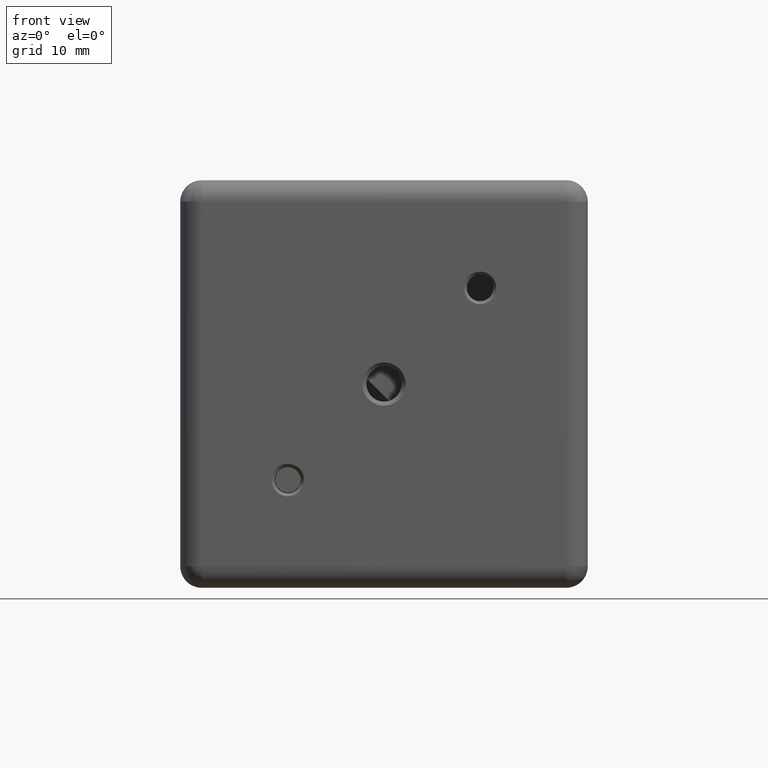
[diagram: clean part render]
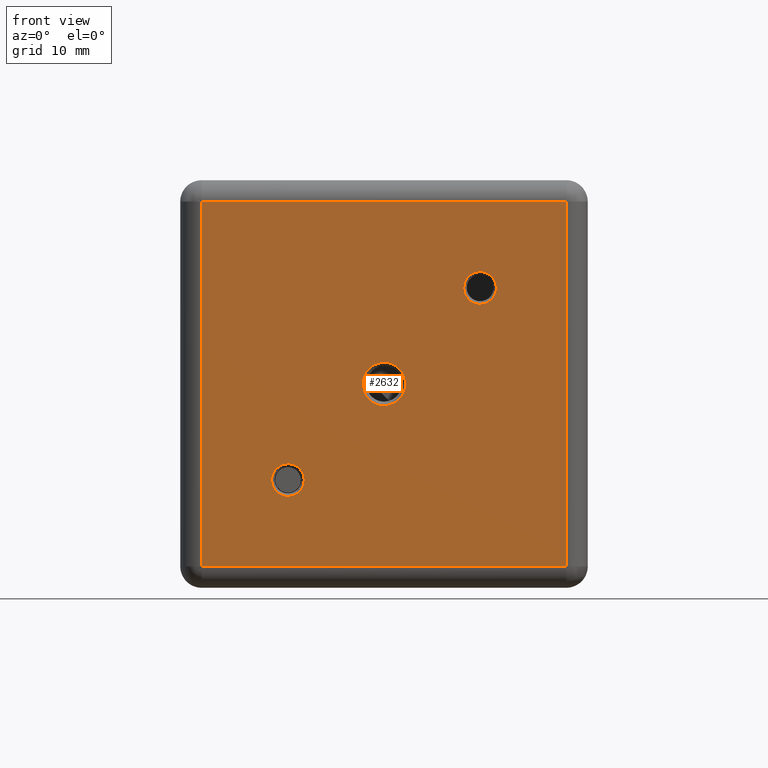
[diagram: same view with one face highlighted and labeled with its STEP entity id]
A machine part, front view. The second image highlights one B-rep face of the part: STEP entity #2632.
In plain terms, the highlighted face is a freeform B-spline surface patch.
Its self-contained STEP definition (entity closure, byte-faithful):
#292 = VERTEX_POINT ( 'NONE', #10666 ) ;
#312 = CARTESIAN_POINT ( 'NONE',  ( -17.05000000000000071, -2.000000000000000000, 17.05000000000000071 ) ) ;
#402 = CARTESIAN_POINT ( 'NONE',  ( 17.05000000000000071, -2.000000000000000000, -17.05000000000000071 ) ) ;
#841 = ORIENTED_EDGE ( 'NONE', *, *, #1658, .F. ) ;
#1124 = CARTESIAN_POINT ( 'NONE',  ( 17.05000000000000071, -2.000000000000000000, -17.05000000000000071 ) ) ;
#1332 = CARTESIAN_POINT ( 'NONE',  ( 8.980256121069210451, -2.000000000000000000, 7.455256121069099962 ) ) ;
#1410 = CARTESIAN_POINT ( 'NONE',  ( -8.980256121069199793, -2.000000000000000000, -7.455256121069109732 ) ) ;
#1658 = EDGE_CURVE ( 'NONE', #5721, #292, #11884, .T. ) ;
#1761 =( BOUNDED_CURVE ( )  B_SPLINE_CURVE ( 3, ( #15290, #11478, #4233, #4386 ),
 .UNSPECIFIED., .F., .T. ) 
 B_SPLINE_CURVE_WITH_KNOTS ( ( 4, 4 ),
 ( 0.000000000000000000, 1.000000000000000000 ),
 .UNSPECIFIED. ) 
 CURVE ( )  GEOMETRIC_REPRESENTATION_ITEM ( )  RATIONAL_B_SPLINE_CURVE ( ( 1.000000000000000000, 0.3333333333333329818, 0.3333333333333329818, 1.000000000000000000 ) ) 
 REPRESENTATION_ITEM ( '' )  );
#1893 = EDGE_CURVE ( 'NONE', #8432, #2973, #3981, .T. ) ;
#1901 = VERTEX_POINT ( 'NONE', #9048 ) ;
#1904 = FACE_BOUND ( 'NONE', #10762, .T. ) ;
#1919 = ORIENTED_EDGE ( 'NONE', *, *, #6158, .F. ) ;
#2125 =( BOUNDED_CURVE ( )  B_SPLINE_CURVE ( 3, ( #3529, #12145, #6082, #13185 ),
 .UNSPECIFIED., .F., .T. ) 
 B_SPLINE_CURVE_WITH_KNOTS ( ( 4, 4 ),
 ( 0.000000000000000000, 1.000000000000000000 ),
 .UNSPECIFIED. ) 
 CURVE ( )  GEOMETRIC_REPRESENTATION_ITEM ( )  RATIONAL_B_SPLINE_CURVE ( ( 1.000000000000000000, 0.3333333333333329818, 0.3333333333333329818, 1.000000000000000000 ) ) 
 REPRESENTATION_ITEM ( '' )  );
#2260 = CARTESIAN_POINT ( 'NONE',  ( -17.05000000000000071, -2.000000000000000000, -17.05000000000000071 ) ) ;
#2326 = EDGE_CURVE ( 'NONE', #9627, #14566, #14978, .T. ) ;
#2632 = ADVANCED_FACE ( 'NONE', ( #9139, #1904, #5163, #10025 ), #14568, .T. ) ;
#2973 = VERTEX_POINT ( 'NONE', #2260 ) ;
#3482 = ORIENTED_EDGE ( 'NONE', *, *, #5699, .F. ) ;
#3529 = CARTESIAN_POINT ( 'NONE',  ( 1.653273178848924895E-16, -2.000000000000000000, 2.024999999999999911 ) ) ;
#3844 = B_SPLINE_CURVE_WITH_KNOTS ( 'NONE', 1,
 ( #11754, #9520 ),
 .UNSPECIFIED., .F., .F.,
 ( 2, 2 ),
 ( 0.000000000000000000, 1.000000000000000000 ),
 .UNSPECIFIED. ) ;
#3847 = CARTESIAN_POINT ( 'NONE',  ( -17.05000000000000071, -2.000000000000000000, 17.05000000000000071 ) ) ;
#3940 = CARTESIAN_POINT ( 'NONE',  ( 12.03025612106919695, -2.000000000000001776, 10.50525612106910245 ) ) ;
#3981 = B_SPLINE_CURVE_WITH_KNOTS ( 'NONE', 1,
 ( #7690, #4112 ),
 .UNSPECIFIED., .F., .F.,
 ( 2, 2 ),
 ( 0.000000000000000000, 1.000000000000000000 ),
 .UNSPECIFIED. ) ;
#3991 = CARTESIAN_POINT ( 'NONE',  ( -8.980256121069199793, -2.000000000000000000, -7.455256121069109732 ) ) ;
#4112 = CARTESIAN_POINT ( 'NONE',  ( -17.05000000000000071, -2.000000000000000000, -17.05000000000000071 ) ) ;
#4233 = CARTESIAN_POINT ( 'NONE',  ( 5.930256121069216846, -2.000000000000000888, 7.455256121069111508 ) ) ;
#4386 = CARTESIAN_POINT ( 'NONE',  ( 8.980256121069210451, -2.000000000000000000, 7.455256121069099962 ) ) ;
#4442 = CARTESIAN_POINT ( 'NONE',  ( -1.653273178848930071E-16, -2.000000000000000000, -2.024999999999999911 ) ) ;
#4616 =( BOUNDED_CURVE ( )  B_SPLINE_CURVE ( 3, ( #1410, #8805, #12152, #12470 ),
 .UNSPECIFIED., .F., .T. ) 
 B_SPLINE_CURVE_WITH_KNOTS ( ( 4, 4 ),
 ( 0.000000000000000000, 1.000000000000000000 ),
 .UNSPECIFIED. ) 
 CURVE ( )  GEOMETRIC_REPRESENTATION_ITEM ( )  RATIONAL_B_SPLINE_CURVE ( ( 1.000000000000000000, 0.3333333333333330373, 0.3333333333333330373, 1.000000000000000000 ) ) 
 REPRESENTATION_ITEM ( '' )  );
#4812 = VERTEX_POINT ( 'NONE', #6494 ) ;
#5018 = CARTESIAN_POINT ( 'NONE',  ( -8.980256121069199793, -2.000000000000000000, -7.455256121069109732 ) ) ;
#5163 = FACE_BOUND ( 'NONE', #11220, .T. ) ;
#5182 = CARTESIAN_POINT ( 'NONE',  ( -5.930256121069207964, -2.000000000000004885, -10.50525612106910422 ) ) ;
#5251 = ORIENTED_EDGE ( 'NONE', *, *, #2326, .F. ) ;
#5570 = EDGE_LOOP ( 'NONE', ( #3482, #841 ) ) ;
#5699 = EDGE_CURVE ( 'NONE', #292, #5721, #2125, .T. ) ;
#5721 = VERTEX_POINT ( 'NONE', #15724 ) ;
#6040 = CARTESIAN_POINT ( 'NONE',  ( 17.05000000000000071, -2.000000000000000000, 17.05000000000000071 ) ) ;
#6082 = CARTESIAN_POINT ( 'NONE',  ( -4.050000000000004263, -1.999999999999999556, -2.025000000000002132 ) ) ;
#6158 = EDGE_CURVE ( 'NONE', #1901, #11968, #7508, .T. ) ;
#6218 = B_SPLINE_CURVE_WITH_KNOTS ( 'NONE', 1,
 ( #6040, #1124 ),
 .UNSPECIFIED., .F., .F.,
 ( 2, 2 ),
 ( 0.000000000000000000, 1.000000000000000000 ),
 .UNSPECIFIED. ) ;
#6494 = CARTESIAN_POINT ( 'NONE',  ( 8.980256121069210451, -2.000000000000000000, 7.455256121069099962 ) ) ;
#6527 = ORIENTED_EDGE ( 'NONE', *, *, #10127, .F. ) ;
#7060 = CARTESIAN_POINT ( 'NONE',  ( 4.050000000000004263, -1.999999999999999556, -2.025000000000002132 ) ) ;
#7447 = CARTESIAN_POINT ( 'NONE',  ( 8.980256121069210451, -2.000000000000000000, 10.50525612106910067 ) ) ;
#7508 =( BOUNDED_CURVE ( )  B_SPLINE_CURVE ( 3, ( #10046, #5182, #8773, #3991 ),
 .UNSPECIFIED., .F., .T. ) 
 B_SPLINE_CURVE_WITH_KNOTS ( ( 4, 4 ),
 ( 0.000000000000000000, 1.000000000000000000 ),
 .UNSPECIFIED. ) 
 CURVE ( )  GEOMETRIC_REPRESENTATION_ITEM ( )  RATIONAL_B_SPLINE_CURVE ( ( 1.000000000000000000, 0.3333333333333329818, 0.3333333333333329818, 1.000000000000000000 ) ) 
 REPRESENTATION_ITEM ( '' )  );
#7626 = CARTESIAN_POINT ( 'NONE',  ( -17.05000000000000071, -2.000000000000000000, 17.05000000000000071 ) ) ;
#7690 = CARTESIAN_POINT ( 'NONE',  ( 17.05000000000000071, -2.000000000000000000, -17.05000000000000071 ) ) ;
#8163 = ORIENTED_EDGE ( 'NONE', *, *, #1893, .F. ) ;
#8432 = VERTEX_POINT ( 'NONE', #8787 ) ;
#8647 = CARTESIAN_POINT ( 'NONE',  ( 12.03025612106919695, -2.000000000000001776, 7.455256121069099073 ) ) ;
#8704 = CARTESIAN_POINT ( 'NONE',  ( 17.05000000000000071, -2.000000000000000000, 17.05000000000000071 ) ) ;
#8773 = CARTESIAN_POINT ( 'NONE',  ( -5.930256121069207964, -2.000000000000004885, -7.455256121069108843 ) ) ;
#8787 = CARTESIAN_POINT ( 'NONE',  ( 17.05000000000000071, -2.000000000000000000, -17.05000000000000071 ) ) ;
#8805 = CARTESIAN_POINT ( 'NONE',  ( -12.03025612106918985, -1.999999999999998224, -7.455256121069114172 ) ) ;
#8834 = CARTESIAN_POINT ( 'NONE',  ( 17.05000000000000071, -2.000000000000000000, 17.05000000000000071 ) ) ;
#9021 = CARTESIAN_POINT ( 'NONE',  ( 8.980256121069210451, -2.000000000000000000, 10.50525612106910067 ) ) ;
#9048 = CARTESIAN_POINT ( 'NONE',  ( -8.980256121069199793, -2.000000000000000000, -10.50525612106910067 ) ) ;
#9093 = EDGE_CURVE ( 'NONE', #13686, #4812, #1761, .T. ) ;
#9139 = FACE_BOUND ( 'NONE', #5570, .T. ) ;
#9449 = ORIENTED_EDGE ( 'NONE', *, *, #10378, .F. ) ;
#9520 = CARTESIAN_POINT ( 'NONE',  ( -17.05000000000000071, -2.000000000000000000, 17.05000000000000071 ) ) ;
#9627 = VERTEX_POINT ( 'NONE', #312 ) ;
#9953 = EDGE_LOOP ( 'NONE', ( #8163, #11566, #5251, #6527 ) ) ;
#10025 = FACE_OUTER_BOUND ( 'NONE', #9953, .T. ) ;
#10046 = CARTESIAN_POINT ( 'NONE',  ( -8.980256121069199793, -2.000000000000000000, -10.50525612106910067 ) ) ;
#10127 = EDGE_CURVE ( 'NONE', #2973, #9627, #3844, .T. ) ;
#10359 = EDGE_CURVE ( 'NONE', #4812, #13686, #14865, .T. ) ;
#10378 = EDGE_CURVE ( 'NONE', #11968, #1901, #4616, .T. ) ;
#10666 = CARTESIAN_POINT ( 'NONE',  ( 1.653273178848924895E-16, -2.000000000000000000, 2.024999999999999911 ) ) ;
#10762 = EDGE_LOOP ( 'NONE', ( #11817, #13326 ) ) ;
#11220 = EDGE_LOOP ( 'NONE', ( #1919, #9449 ) ) ;
#11478 = CARTESIAN_POINT ( 'NONE',  ( 5.930256121069216846, -2.000000000000000888, 10.50525612106909890 ) ) ;
#11566 = ORIENTED_EDGE ( 'NONE', *, *, #12469, .F. ) ;
#11754 = CARTESIAN_POINT ( 'NONE',  ( -17.05000000000000071, -2.000000000000000000, -17.05000000000000071 ) ) ;
#11817 = ORIENTED_EDGE ( 'NONE', *, *, #10359, .F. ) ;
#11884 =( BOUNDED_CURVE ( )  B_SPLINE_CURVE ( 3, ( #4442, #7060, #12977, #13124 ),
 .UNSPECIFIED., .F., .F. ) 
 B_SPLINE_CURVE_WITH_KNOTS ( ( 4, 4 ),
 ( 0.000000000000000000, 1.000000000000000000 ),
 .UNSPECIFIED. ) 
 CURVE ( )  GEOMETRIC_REPRESENTATION_ITEM ( )  RATIONAL_B_SPLINE_CURVE ( ( 1.000000000000000000, 0.3333333333333329818, 0.3333333333333329818, 1.000000000000000000 ) ) 
 REPRESENTATION_ITEM ( '' )  );
#11968 = VERTEX_POINT ( 'NONE', #5018 ) ;
#12145 = CARTESIAN_POINT ( 'NONE',  ( -4.050000000000004263, -1.999999999999999556, 2.025000000000002132 ) ) ;
#12152 = CARTESIAN_POINT ( 'NONE',  ( -12.03025612106918985, -1.999999999999998224, -10.50525612106909712 ) ) ;
#12469 = EDGE_CURVE ( 'NONE', #14566, #8432, #6218, .T. ) ;
#12470 = CARTESIAN_POINT ( 'NONE',  ( -8.980256121069199793, -2.000000000000000000, -10.50525612106910067 ) ) ;
#12498 = CARTESIAN_POINT ( 'NONE',  ( -17.05000000000000071, -2.000000000000000000, -17.05000000000000071 ) ) ;
#12704 = CARTESIAN_POINT ( 'NONE',  ( 17.05000000000000071, -2.000000000000000000, 17.05000000000000071 ) ) ;
#12977 = CARTESIAN_POINT ( 'NONE',  ( 4.050000000000004263, -1.999999999999999556, 2.025000000000002132 ) ) ;
#13124 = CARTESIAN_POINT ( 'NONE',  ( 1.653273178848924895E-16, -2.000000000000000000, 2.024999999999999911 ) ) ;
#13185 = CARTESIAN_POINT ( 'NONE',  ( -1.653273178848930071E-16, -2.000000000000000000, -2.024999999999999911 ) ) ;
#13326 = ORIENTED_EDGE ( 'NONE', *, *, #9093, .F. ) ;
#13686 = VERTEX_POINT ( 'NONE', #9021 ) ;
#14566 = VERTEX_POINT ( 'NONE', #12704 ) ;
#14568 = B_SPLINE_SURFACE_WITH_KNOTS ( 'NONE', 1, 1, ( 
 ( #8834, #402 ),
 ( #7626, #12498 ) ),
 .UNSPECIFIED., .F., .F., .F.,
 ( 2, 2 ),
 ( 2, 2 ),
 ( 0.000000000000000000, 1.000000000000000000 ),
 ( 0.000000000000000000, 1.000000000000000000 ),
 .UNSPECIFIED. ) ;
#14865 =( BOUNDED_CURVE ( )  B_SPLINE_CURVE ( 3, ( #1332, #8647, #3940, #7447 ),
 .UNSPECIFIED., .F., .T. ) 
 B_SPLINE_CURVE_WITH_KNOTS ( ( 4, 4 ),
 ( 0.000000000000000000, 1.000000000000000000 ),
 .UNSPECIFIED. ) 
 CURVE ( )  GEOMETRIC_REPRESENTATION_ITEM ( )  RATIONAL_B_SPLINE_CURVE ( ( 1.000000000000000000, 0.3333333333333329263, 0.3333333333333329263, 1.000000000000000000 ) ) 
 REPRESENTATION_ITEM ( '' )  );
#14978 = B_SPLINE_CURVE_WITH_KNOTS ( 'NONE', 1,
 ( #3847, #8704 ),
 .UNSPECIFIED., .F., .F.,
 ( 2, 2 ),
 ( 0.000000000000000000, 1.000000000000000000 ),
 .UNSPECIFIED. ) ;
#15290 = CARTESIAN_POINT ( 'NONE',  ( 8.980256121069210451, -2.000000000000000000, 10.50525612106910067 ) ) ;
#15724 = CARTESIAN_POINT ( 'NONE',  ( -1.653273178848930071E-16, -2.000000000000000000, -2.024999999999999911 ) ) ;